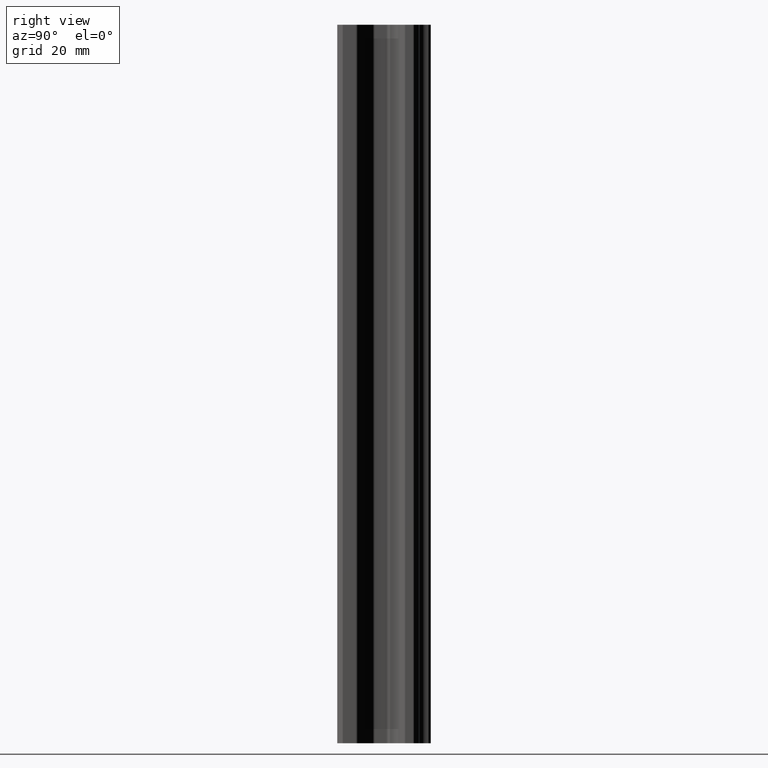
[diagram: clean part render]
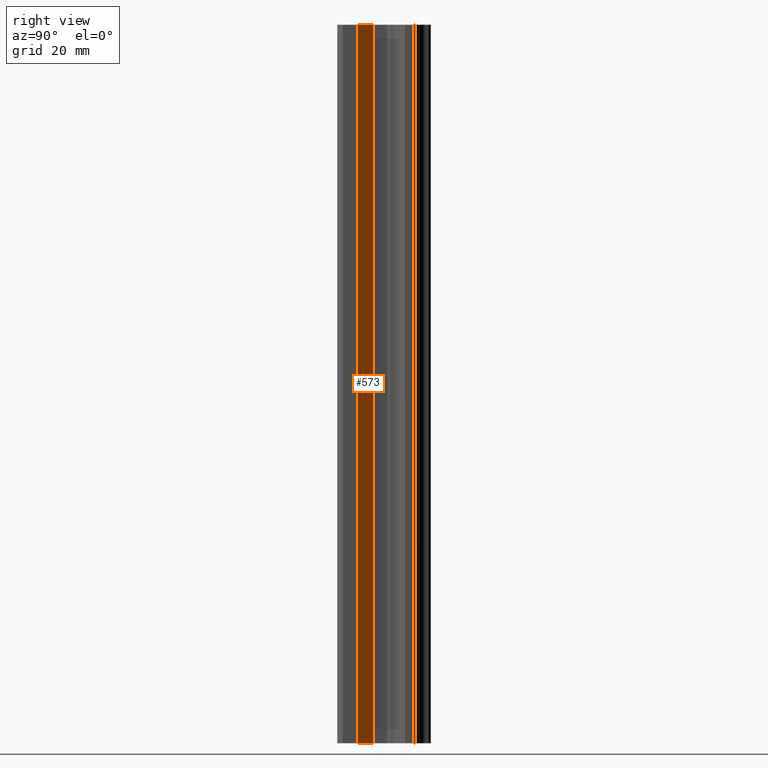
[diagram: same view with one face highlighted and labeled with its STEP entity id]
A machine part, right view. The second image highlights one B-rep face of the part: STEP entity #573.
In plain terms, the highlighted planar face has unit normal (0.7071, 0.7071, 0).
Its self-contained STEP definition (entity closure, byte-faithful):
#274 = VERTEX_POINT ( 'NONE', #1459 ) ;
#328 = VERTEX_POINT ( 'NONE', #1264 ) ;
#331 = EDGE_CURVE ( 'NONE', #332, #328, #1323, .T. ) ;
#332 = VERTEX_POINT ( 'NONE', #1319 ) ;
#365 = EDGE_CURVE ( 'NONE', #274, #373, #1359, .T. ) ;
#373 = VERTEX_POINT ( 'NONE', #1412 ) ;
#491 = ORIENTED_EDGE ( 'NONE', *, *, #331, .T. ) ;
#492 = ORIENTED_EDGE ( 'NONE', *, *, #493, .F. ) ;
#493 = EDGE_CURVE ( 'NONE', #274, #328, #1567, .T. ) ;
#573 = ADVANCED_FACE ( 'NONE', ( #1679 ), #1678, .T. ) ;
#574 = EDGE_LOOP ( 'NONE', ( #641, #642, #491, #492 ) ) ;
#641 = ORIENTED_EDGE ( 'NONE', *, *, #365, .T. ) ;
#642 = ORIENTED_EDGE ( 'NONE', *, *, #643, .T. ) ;
#643 = EDGE_CURVE ( 'NONE', #373, #332, #2004, .T. ) ;
#1264 = CARTESIAN_POINT ( 'NONE',  ( 9.534314575051247700, -16.09321492031005000, 100.0000000000000000 ) ) ;
#1319 = CARTESIAN_POINT ( 'NONE',  ( 9.534314575051247700, -16.09321492031005000, -100.0000000000000000 ) ) ;
#1320 = DIRECTION ( 'NONE',  ( 0.0000000000000000000, 0.0000000000000000000, 1.000000000000000000 ) ) ;
#1321 = VECTOR ( 'NONE', #1320, 1000.000000000000000 ) ;
#1322 = CARTESIAN_POINT ( 'NONE',  ( 9.534314575051199700, -16.09321492031179800, -100.0000000000000000 ) ) ;
#1323 = LINE ( 'NONE', #1322, #1321 ) ;
#1356 = DIRECTION ( 'NONE',  ( 0.0000000000000000000, 0.0000000000000000000, -1.000000000000000000 ) ) ;
#1357 = VECTOR ( 'NONE', #1356, 1000.000000000000000 ) ;
#1358 = CARTESIAN_POINT ( 'NONE',  ( 13.76568542495000000, -20.32458577021000000, -100.0000000000000000 ) ) ;
#1359 = LINE ( 'NONE', #1358, #1357 ) ;
#1412 = CARTESIAN_POINT ( 'NONE',  ( 13.76568542495010000, -20.32458577021009900, -100.0000000000000000 ) ) ;
#1459 = CARTESIAN_POINT ( 'NONE',  ( 13.76568542495010100, -20.32458577021009900, 100.0000000000000000 ) ) ;
#1564 = DIRECTION ( 'NONE',  ( -0.7071067811862970000, 0.7071067811867979300, 0.0000000000000000000 ) ) ;
#1565 = VECTOR ( 'NONE', #1564, 1000.000000000000100 ) ;
#1566 = CARTESIAN_POINT ( 'NONE',  ( 13.76568542495000000, -20.32458577021000000, 100.0000000000000000 ) ) ;
#1567 = LINE ( 'NONE', #1566, #1565 ) ;
#1674 = DIRECTION ( 'NONE',  ( -0.7071067811865975300, 0.7071067811864976100, 0.0000000000000000000 ) ) ;
#1675 = DIRECTION ( 'NONE',  ( 0.7071067811864976100, 0.7071067811865975300, 0.0000000000000000000 ) ) ;
#1676 = CARTESIAN_POINT ( 'NONE',  ( 13.76568542495000000, -20.32458577021000000, -100.0000000000000000 ) ) ;
#1677 = AXIS2_PLACEMENT_3D ( 'NONE', #1676, #1675, #1674 ) ;
#1678 = PLANE ( 'NONE',  #1677 ) ;
#1679 = FACE_OUTER_BOUND ( 'NONE', #574, .T. ) ;
#2001 = DIRECTION ( 'NONE',  ( -0.7071067811862970000, 0.7071067811867981500, 0.0000000000000000000 ) ) ;
#2002 = VECTOR ( 'NONE', #2001, 999.9999999999998900 ) ;
#2003 = CARTESIAN_POINT ( 'NONE',  ( 13.76568542493999900, -20.32458577019999900, -100.0000000000000000 ) ) ;
#2004 = LINE ( 'NONE', #2003, #2002 ) ;